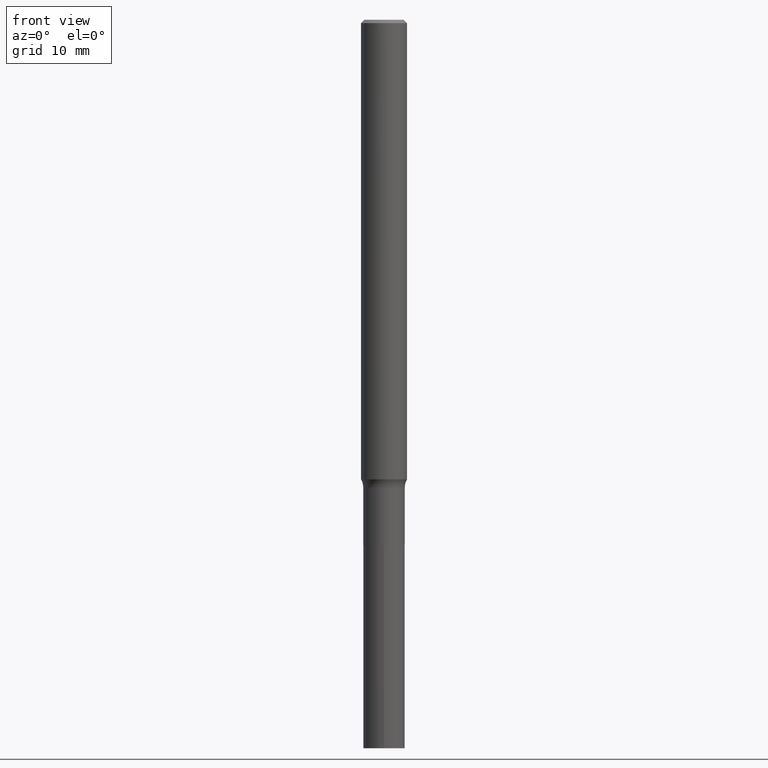
[diagram: clean part render]
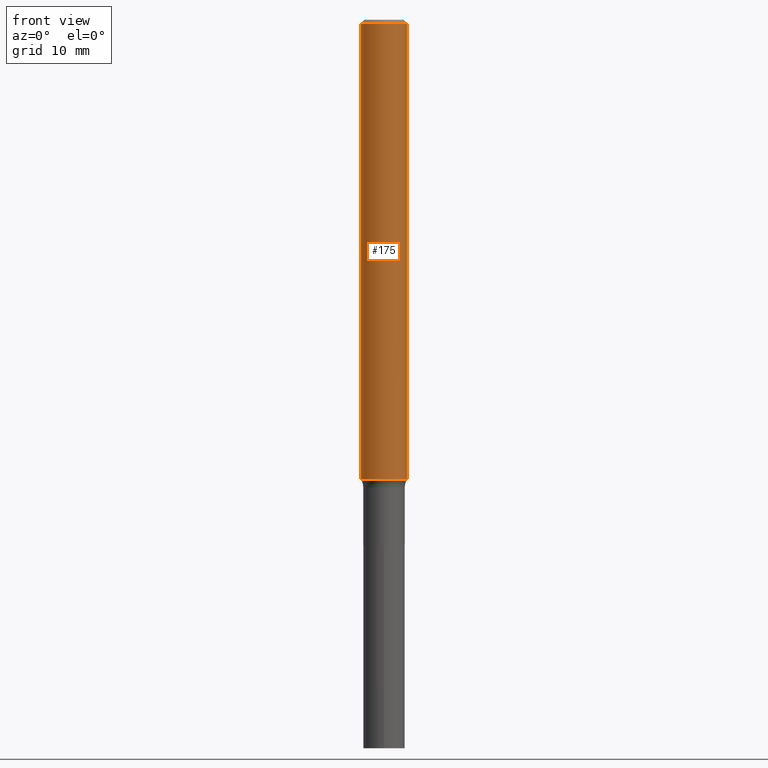
[diagram: same view with one face highlighted and labeled with its STEP entity id]
A machine part, front view. The second image highlights one B-rep face of the part: STEP entity #175.
In plain terms, the highlighted cylindrical surface (edge-blend (fillet) strip) has radius 2.9997 mm, axis along (-0, 0, 1).
Its self-contained STEP definition (entity closure, byte-faithful):
#1 = VERTEX_POINT ( 'NONE', #330 ) ;
#5 = DIRECTION ( 'NONE',  ( -2.445468806185136877E-29, 3.491481338843145188E-15, 1.000000000000000000 ) ) ;
#12 = DIRECTION ( 'NONE',  ( 1.000000000000000000, -6.982962677686266711E-15, 0.000000000000000000 ) ) ;
#34 = CARTESIAN_POINT ( 'NONE',  ( 5.770596610180262322E-29, -8.238882592768014117E-15, -2.359709760183869687 ) ) ;
#41 = DIRECTION ( 'NONE',  ( -2.445468806185136597E-29, 3.491481338843145583E-15, 1.000000000000000000 ) ) ;
#48 = EDGE_CURVE ( 'NONE', #58, #1, #336, .T. ) ;
#52 = EDGE_CURVE ( 'NONE', #283, #58, #192, .T. ) ;
#58 = VERTEX_POINT ( 'NONE', #374 ) ;
#85 = DIRECTION ( 'NONE',  ( 1.000000000000000000, -6.982962677686264344E-15, 0.000000000000000000 ) ) ;
#86 = EDGE_LOOP ( 'NONE', ( #111, #462, #280, #321 ) ) ;
#111 = ORIENTED_EDGE ( 'NONE', *, *, #52, .F. ) ;
#122 = CARTESIAN_POINT ( 'NONE',  ( -0.1181000000000002742, -7.399731621835335132E-15, -2.359709760183869687 ) ) ;
#137 = EDGE_CURVE ( 'NONE', #157, #1, #425, .T. ) ;
#157 = VERTEX_POINT ( 'NONE', #383 ) ;
#175 = ADVANCED_FACE ( 'NONE', ( #412 ), #388, .T. ) ;
#192 = LINE ( 'NONE', #335, #346 ) ;
#204 = CARTESIAN_POINT ( 'NONE',  ( 0.1181000000000001354, -8.246878922347490515E-16, 5.758764772215007447E-30 ) ) ;
#226 = CARTESIAN_POINT ( 'NONE',  ( 4.332147990156998495E-31, -6.185159191760672860E-17, -0.01771500000000011607 ) ) ;
#232 = VECTOR ( 'NONE', #349, 39.37007874015748143 ) ;
#241 = AXIS2_PLACEMENT_3D ( 'NONE', #226, #41, #12 ) ;
#243 = CARTESIAN_POINT ( 'NONE',  ( 0.000000000000000000, 0.000000000000000000, 0.000000000000000000 ) ) ;
#274 = AXIS2_PLACEMENT_3D ( 'NONE', #34, #292, #85 ) ;
#276 = EDGE_CURVE ( 'NONE', #283, #157, #279, .T. ) ;
#279 = CIRCLE ( 'NONE', #274, 0.1181000000000002742 ) ;
#280 = ORIENTED_EDGE ( 'NONE', *, *, #137, .T. ) ;
#283 = VERTEX_POINT ( 'NONE', #122 ) ;
#287 = AXIS2_PLACEMENT_3D ( 'NONE', #243, #357, #464 ) ;
#292 = DIRECTION ( 'NONE',  ( -2.445468806185136597E-29, 3.491481338843145583E-15, 1.000000000000000000 ) ) ;
#321 = ORIENTED_EDGE ( 'NONE', *, *, #48, .F. ) ;
#330 = CARTESIAN_POINT ( 'NONE',  ( 0.1180999999999999966, -8.865394841523548556E-16, -0.01771500000000011607 ) ) ;
#335 = CARTESIAN_POINT ( 'NONE',  ( -0.1181000000000001354, 8.391509709326792818E-16, -5.809262341591050090E-30 ) ) ;
#336 = CIRCLE ( 'NONE', #241, 0.1180999999999999966 ) ;
#346 = VECTOR ( 'NONE', #5, 39.37007874015748143 ) ;
#349 = DIRECTION ( 'NONE',  ( -2.445468806185136877E-29, 3.491481338843145188E-15, 1.000000000000000000 ) ) ;
#357 = DIRECTION ( 'NONE',  ( -2.445468806185136597E-29, 3.491481338843145583E-15, 1.000000000000000000 ) ) ;
#374 = CARTESIAN_POINT ( 'NONE',  ( -0.1180999999999999966, -3.311216121410129200E-15, -0.01771500000000011607 ) ) ;
#383 = CARTESIAN_POINT ( 'NONE',  ( 0.1181000000000002742, -9.063570485002762380E-15, -2.359709760183869687 ) ) ;
#388 = CYLINDRICAL_SURFACE ( 'NONE', #287, 0.1181000000000001354 ) ;
#412 = FACE_OUTER_BOUND ( 'NONE', #86, .T. ) ;
#425 = LINE ( 'NONE', #204, #232 ) ;
#462 = ORIENTED_EDGE ( 'NONE', *, *, #276, .T. ) ;
#464 = DIRECTION ( 'NONE',  ( 1.000000000000000000, -6.982962677686266711E-15, 4.876176775795936353E-29 ) ) ;